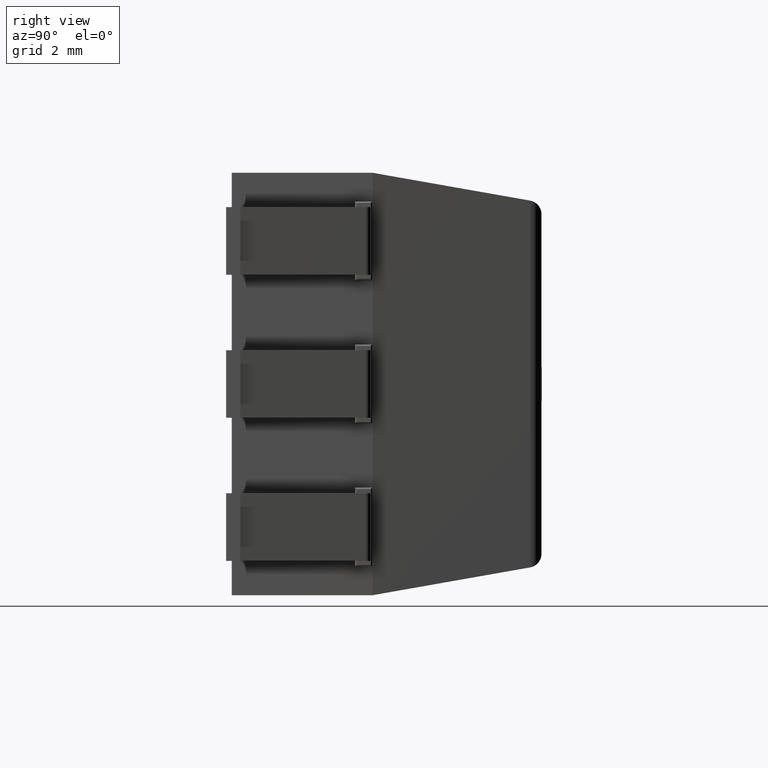
[diagram: clean part render]
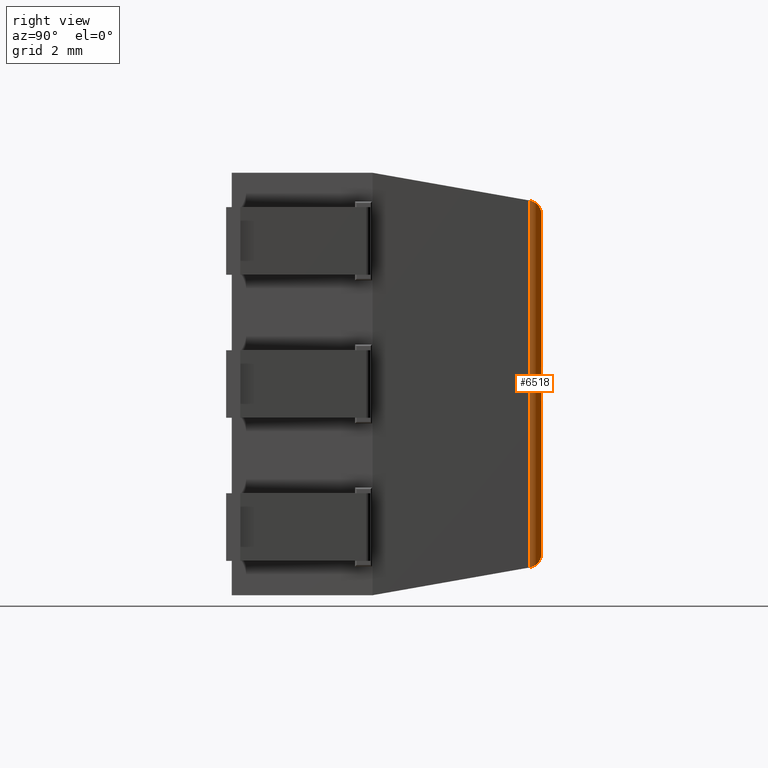
[diagram: same view with one face highlighted and labeled with its STEP entity id]
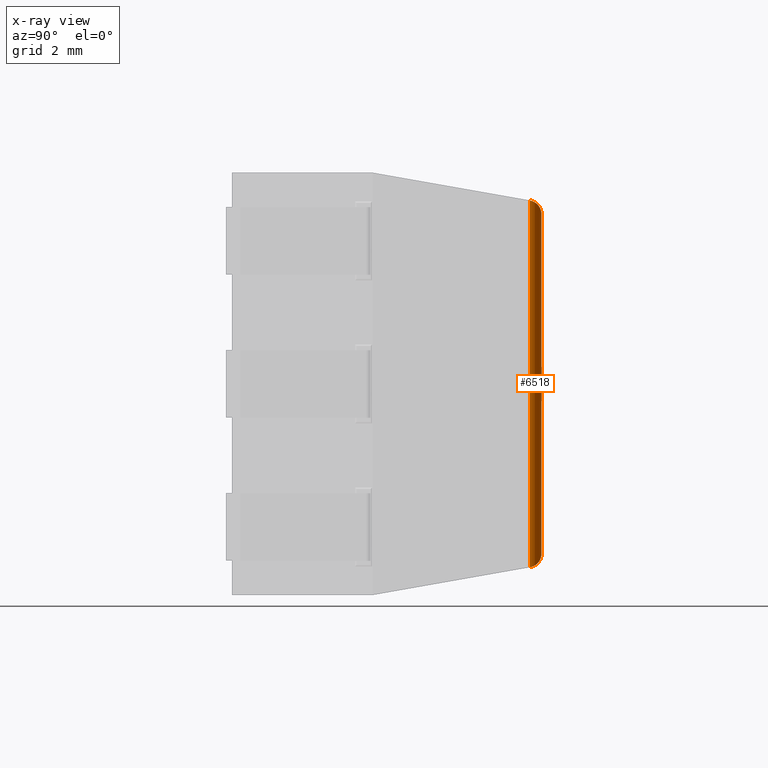
[diagram: x-ray of the same camera — body ghosted, the highlighted face saturated]
A machine part, right view. The second image highlights one B-rep face of the part: STEP entity #6518.
The next image is the same camera in x-ray: the body ghosted, the highlighted face saturated — about 0% of this face is hidden behind the body in this view.
In plain terms, the highlighted cylindrical surface (edge-blend (fillet) strip) has radius 0.25 mm, axis along (0, 0, -1).
Its self-contained STEP definition (entity closure, byte-faithful):
#44 = DIRECTION ( 'NONE',  ( 0.0000000000000000000, 0.0000000000000000000, -1.000000000000000000 ) ) ;
#93 = FACE_OUTER_BOUND ( 'NONE', #8482, .T. ) ;
#1109 = EDGE_CURVE ( 'NONE', #6581, #3426, #4409, .T. ) ;
#1345 = CYLINDRICAL_SURFACE ( 'NONE', #4074, 0.2500000000000002200 ) ;
#1354 = CARTESIAN_POINT ( 'NONE',  ( 4.988172476566000500, 5.499999999999999100, -0.6118275234339978200 ) ) ;
#1385 = CARTESIAN_POINT ( 'NONE',  ( 5.107446088333335700, 5.293412044416731600, -0.4925539116666643500 ) ) ;
#1876 = EDGE_CURVE ( 'NONE', #6581, #6047, #8199, .T. ) ;
#1909 = ORIENTED_EDGE ( 'NONE', *, *, #2635, .F. ) ;
#2069 = DIRECTION ( 'NONE',  ( -1.000000000000000000, 0.0000000000000000000, 0.0000000000000000000 ) ) ;
#2073 = CARTESIAN_POINT ( 'NONE',  ( 5.107446088333335700, 5.293412044416731600, -7.007446088333335200 ) ) ;
#2100 = VERTEX_POINT ( 'NONE', #2774 ) ;
#2343 = ORIENTED_EDGE ( 'NONE', *, *, #1876, .F. ) ;
#2635 = EDGE_CURVE ( 'NONE', #2100, #3426, #8500, .T. ) ;
#2774 = CARTESIAN_POINT ( 'NONE',  ( 4.861244150080283400, 5.500000000000000000, -0.7387558499197165500 ) ) ;
#2875 = DIRECTION ( 'NONE',  ( -0.0000000000000000000, -0.0000000000000000000, -1.000000000000000000 ) ) ;
#2956 = VECTOR ( 'NONE', #2875, 1000.000000000000000 ) ;
#3426 = VERTEX_POINT ( 'NONE', #4397 ) ;
#3646 = ORIENTED_EDGE ( 'NONE', *, *, #1109, .T. ) ;
#4074 = AXIS2_PLACEMENT_3D ( 'NONE', #6677, #44, #2069 ) ;
#4119 =( BOUNDED_CURVE ( )  B_SPLINE_CURVE ( 3, ( #1385, #7485, #1354, #7434 ),
 .UNSPECIFIED., .F., .T. ) 
 B_SPLINE_CURVE_WITH_KNOTS ( ( 4, 4 ),
 ( 3.316125578789223600, 4.712388980384688800 ),
 .UNSPECIFIED. ) 
 CURVE ( )  GEOMETRIC_REPRESENTATION_ITEM ( )  RATIONAL_B_SPLINE_CURVE ( ( 1.000000000000000000, 0.8440296287459849700, 0.8440296287459849700, 1.000000000000000000 ) ) 
 REPRESENTATION_ITEM ( '' )  );
#4397 = CARTESIAN_POINT ( 'NONE',  ( 4.861244150080283400, 5.500000000000000000, -6.761244150080282900 ) ) ;
#4409 =( BOUNDED_CURVE ( )  B_SPLINE_CURVE ( 3, ( #2073, #8170, #6147, #5470 ),
 .UNSPECIFIED., .F., .F. ) 
 B_SPLINE_CURVE_WITH_KNOTS ( ( 4, 4 ),
 ( 0.1745329251994306200, 1.570796326794896600 ),
 .UNSPECIFIED. ) 
 CURVE ( )  GEOMETRIC_REPRESENTATION_ITEM ( )  RATIONAL_B_SPLINE_CURVE ( ( 1.000000000000000000, 0.8440296287459847500, 0.8440296287459847500, 1.000000000000000000 ) ) 
 REPRESENTATION_ITEM ( '' )  );
#4909 = CARTESIAN_POINT ( 'NONE',  ( 5.107446088333335700, 5.293412044416731600, -7.007446088333335200 ) ) ;
#5222 = CARTESIAN_POINT ( 'NONE',  ( 5.107446088333335700, 5.293412044416731600, -0.5289809421253955900 ) ) ;
#5470 = CARTESIAN_POINT ( 'NONE',  ( 4.861244150080283400, 5.500000000000000000, -6.761244150080282900 ) ) ;
#6047 = VERTEX_POINT ( 'NONE', #6392 ) ;
#6147 = CARTESIAN_POINT ( 'NONE',  ( 4.988172476566001400, 5.500000000000000000, -6.888172476566003500 ) ) ;
#6392 = CARTESIAN_POINT ( 'NONE',  ( 5.107446088333335700, 5.293412044416731600, -0.4925539116666643500 ) ) ;
#6518 = ADVANCED_FACE ( 'NONE', ( #93 ), #1345, .T. ) ;
#6581 = VERTEX_POINT ( 'NONE', #4909 ) ;
#6677 = CARTESIAN_POINT ( 'NONE',  ( 4.861244150080283400, 5.249999999999999100, 0.0000000000000000000 ) ) ;
#6759 = VECTOR ( 'NONE', #8505, 1000.000000000000000 ) ;
#7434 = CARTESIAN_POINT ( 'NONE',  ( 4.861244150080283400, 5.500000000000000000, -0.7387558499197165500 ) ) ;
#7485 = CARTESIAN_POINT ( 'NONE',  ( 5.085405215744776400, 5.418412044416731600, -0.5145947842552224300 ) ) ;
#7537 = CARTESIAN_POINT ( 'NONE',  ( 4.861244150080283400, 5.500000000000000000, -6.971019057874602100 ) ) ;
#7819 = EDGE_CURVE ( 'NONE', #6047, #2100, #4119, .T. ) ;
#8023 = ORIENTED_EDGE ( 'NONE', *, *, #7819, .F. ) ;
#8170 = CARTESIAN_POINT ( 'NONE',  ( 5.085405215744777300, 5.418412044416731600, -6.985405215744778600 ) ) ;
#8199 = LINE ( 'NONE', #5222, #6759 ) ;
#8482 = EDGE_LOOP ( 'NONE', ( #3646, #1909, #8023, #2343 ) ) ;
#8500 = LINE ( 'NONE', #7537, #2956 ) ;
#8505 = DIRECTION ( 'NONE',  ( -0.0000000000000000000, -0.0000000000000000000, 1.000000000000000000 ) ) ;